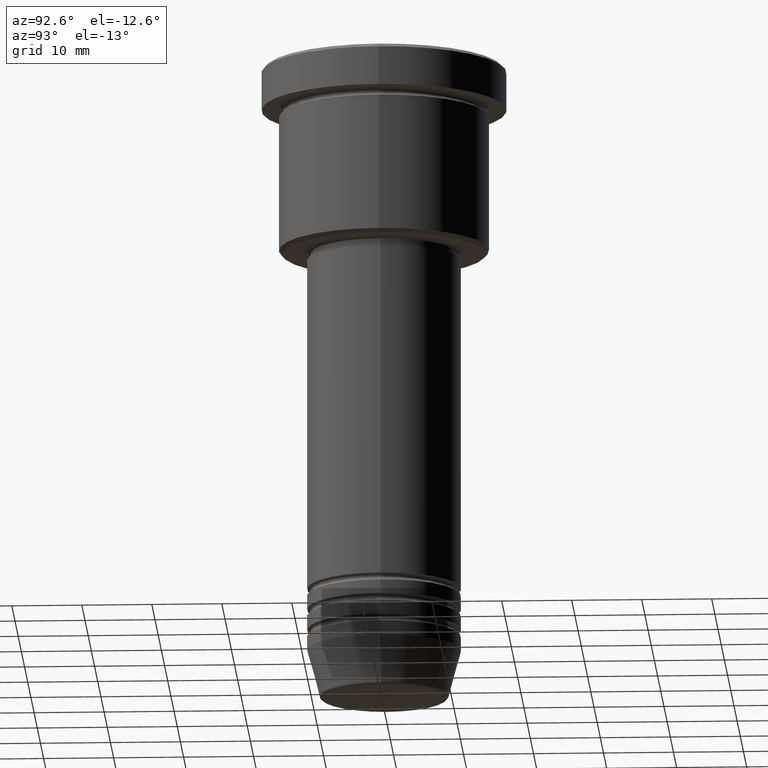
[diagram: clean part render]
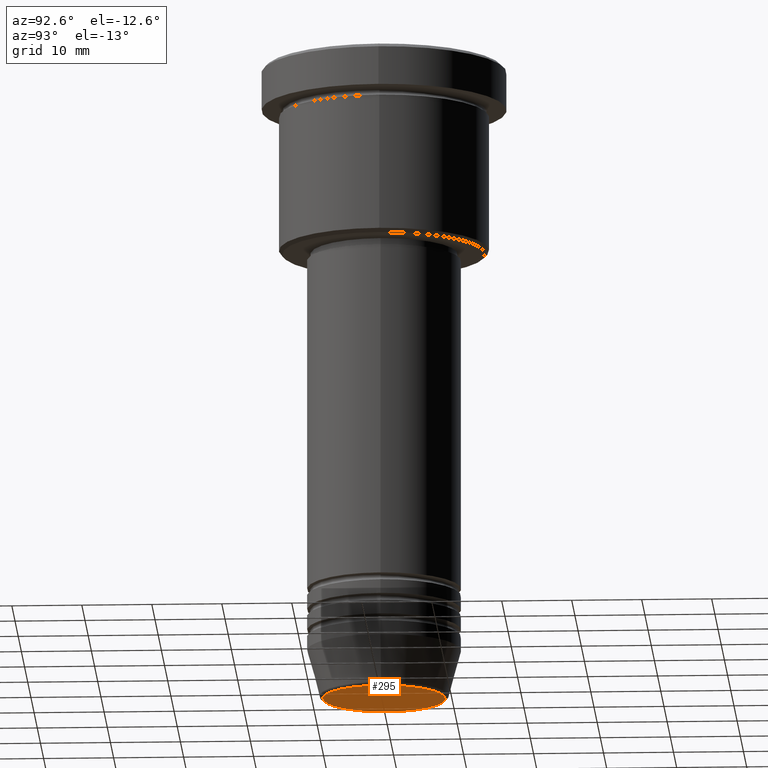
[diagram: same view with one face highlighted and labeled with its STEP entity id]
A machine part, auxiliary view. The second image highlights one B-rep face of the part: STEP entity #295.
In plain terms, the highlighted planar face has unit normal (0, -0, 1).
Its self-contained STEP definition (entity closure, byte-faithful):
#19 = CARTESIAN_POINT ( 'NONE',  ( 8.740692158992652949, 0.000000000000000000, -92.00000000000000000 ) ) ;
#37 = VERTEX_POINT ( 'NONE', #875 ) ;
#170 = CARTESIAN_POINT ( 'NONE',  ( 0.000000000000000000, 0.000000000000000000, -92.00000000000000000 ) ) ;
#171 = DIRECTION ( 'NONE',  ( 1.000000000000000000, 0.000000000000000000, 0.000000000000000000 ) ) ;
#229 = ORIENTED_EDGE ( 'NONE', *, *, #564, .T. ) ;
#295 = ADVANCED_FACE ( 'NONE', ( #1155 ), #742, .F. ) ;
#332 = VERTEX_POINT ( 'NONE', #19 ) ;
#357 = ORIENTED_EDGE ( 'NONE', *, *, #1057, .T. ) ;
#361 = CIRCLE ( 'NONE', #1052, 8.740692158992652949 ) ;
#441 = DIRECTION ( 'NONE',  ( 0.000000000000000000, 0.000000000000000000, -1.000000000000000000 ) ) ;
#544 = DIRECTION ( 'NONE',  ( 0.000000000000000000, -0.000000000000000000, 1.000000000000000000 ) ) ;
#563 = CIRCLE ( 'NONE', #999, 8.740692158992652949 ) ;
#564 = EDGE_CURVE ( 'NONE', #332, #37, #361, .T. ) ;
#581 = AXIS2_PLACEMENT_3D ( 'NONE', #730, #544, #1002 ) ;
#724 = CARTESIAN_POINT ( 'NONE',  ( 0.000000000000000000, 0.000000000000000000, -92.00000000000000000 ) ) ;
#730 = CARTESIAN_POINT ( 'NONE',  ( 0.000000000000000000, 0.000000000000000000, -92.00000000000000000 ) ) ;
#742 = PLANE ( 'NONE',  #581 ) ;
#819 = DIRECTION ( 'NONE',  ( 1.000000000000000000, 0.000000000000000000, 0.000000000000000000 ) ) ;
#875 = CARTESIAN_POINT ( 'NONE',  ( -8.740692158992652949, 1.099999016768739259E-15, -92.00000000000000000 ) ) ;
#999 = AXIS2_PLACEMENT_3D ( 'NONE', #170, #441, #819 ) ;
#1002 = DIRECTION ( 'NONE',  ( 1.000000000000000000, 0.000000000000000000, 0.000000000000000000 ) ) ;
#1052 = AXIS2_PLACEMENT_3D ( 'NONE', #724, #1103, #171 ) ;
#1057 = EDGE_CURVE ( 'NONE', #37, #332, #563, .T. ) ;
#1103 = DIRECTION ( 'NONE',  ( 0.000000000000000000, 0.000000000000000000, -1.000000000000000000 ) ) ;
#1148 = EDGE_LOOP ( 'NONE', ( #229, #357 ) ) ;
#1155 = FACE_OUTER_BOUND ( 'NONE', #1148, .T. ) ;